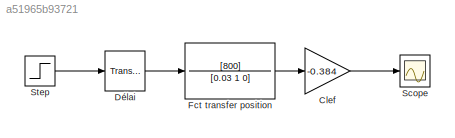
MODEL slx_a51965b93721
KIND model
CONFIG AbsTol = auto
CONFIG EnableMultiTasking = off
CONFIG FixedStep = auto
CONFIG MaxStep = auto
CONFIG MinStep = auto
CONFIG RelTol = 1e-3
CONFIG SampleTimeConstraint = Unconstrained
CONFIG Solver = VariableStepAuto
CONFIG SolverName = VariableStepAuto
CONFIG StartTime = 0.0
CONFIG StopTime = 0.5
BLOCK [Gain] Clef
  Gain = -0.384
  OutDataTypeStr = Inherit: Inherit via internal rule
  ParamDataTypeStr = Inherit: Inherit via internal rule
  SaturateOnIntegerOverflow = off
BLOCK [TransportDelay] Délai
  DelayTime = 0.01
  Ports = [1, 1]
BLOCK [TransferFcn] Fct transfer position
  Denominator = [0.03 1 0]
  Numerator = [800]
BLOCK [Scope] Scope
  Floating = off
  NumInputPorts = 1
  Ports = [1]
  ScopeSpecificationString = Simulink.scopes.TimeScopeBlockCfg('CurrentConfiguration', extmgr.ConfigurationSet(extmgr.Configuration('Core','General UI',true),extmgr.Configuration('Core','Source UI',true),extmgr.Configuration('Sources','WiredSimulink',true),extmgr.Configuration('Visuals','Time Domain',true,'SerializedDisplays',{struct('MinYLimReal','-148.70905','MaxYLimReal','16.52323','YLabelReal','','MinYLimMag',' 0.00000','...<+1364ch>
BLOCK [Step] Step
  SampleTime = 0
  Time = 0.03
LINE Clef:1 -> Scope:1
LINE Délai:1 -> Fct transfer position:1
LINE Fct transfer position:1 -> Clef:1
LINE Step:1 -> Délai:1
